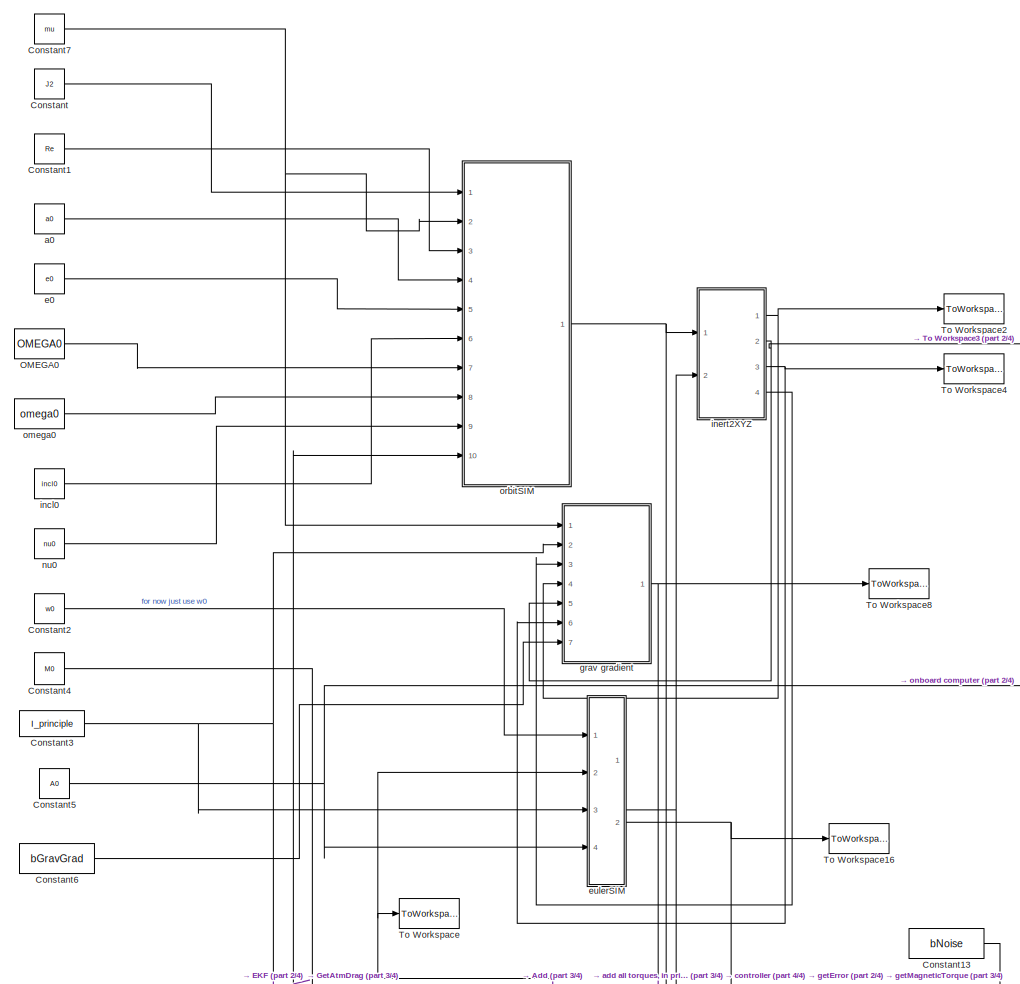
[diagram: root canvas - part 1/4, top center region]
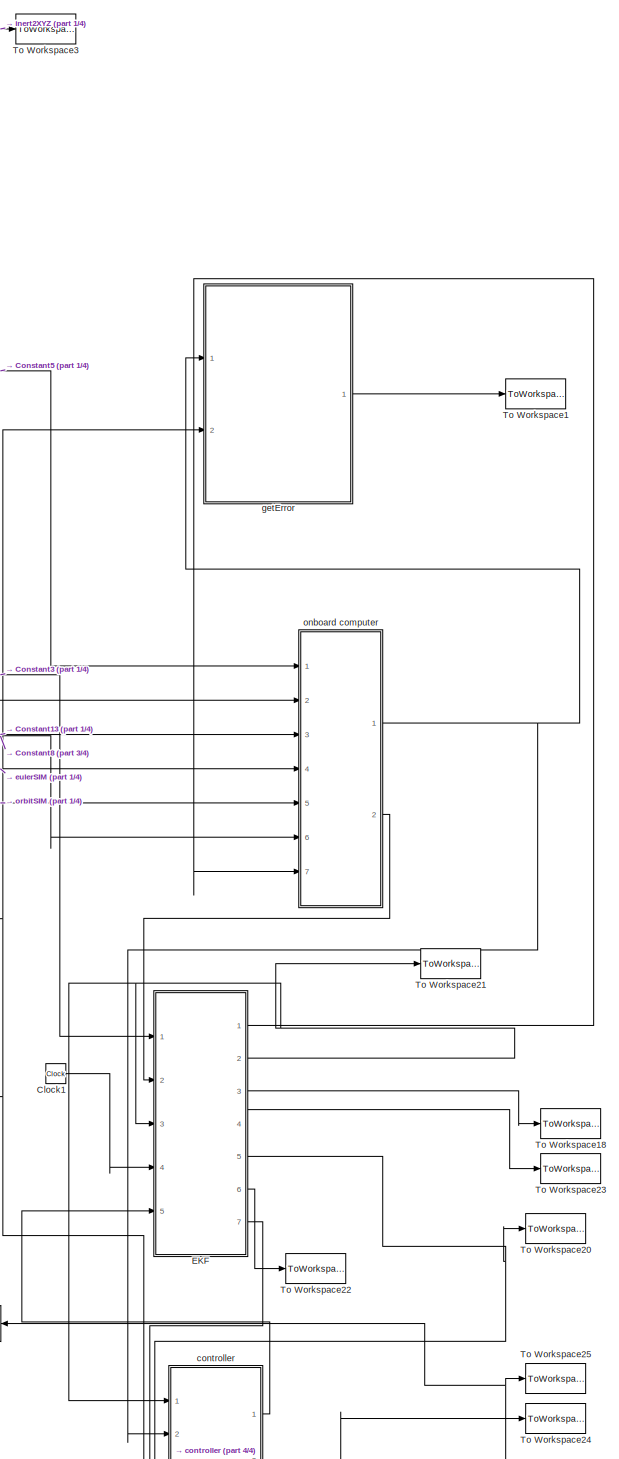
[diagram: root canvas - part 2/4, right side, full height]
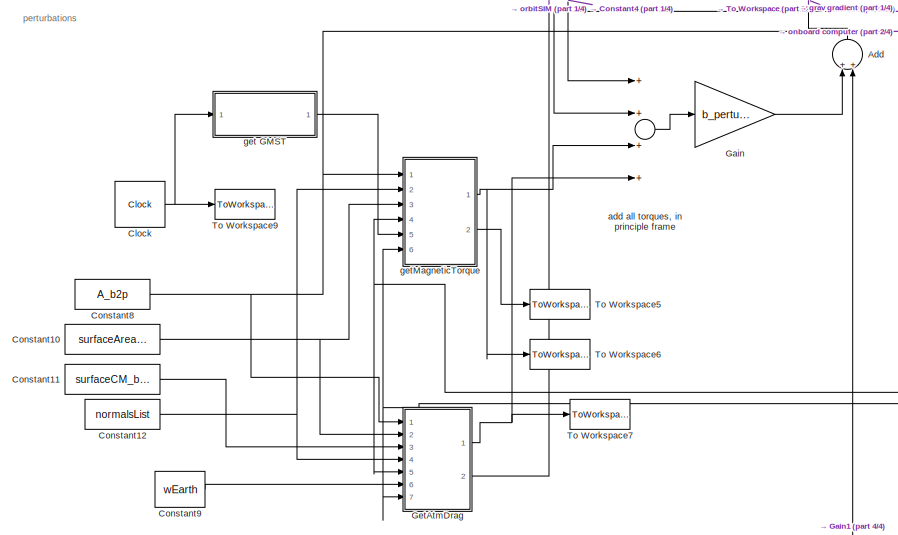
[diagram: root canvas - part 3/4, middle left region]
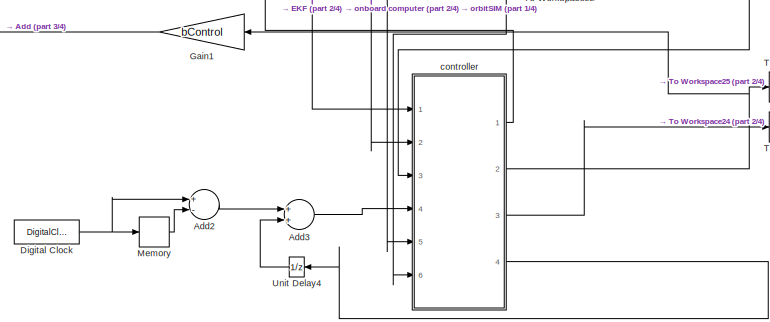
[diagram: root canvas - part 4/4, bottom right region]
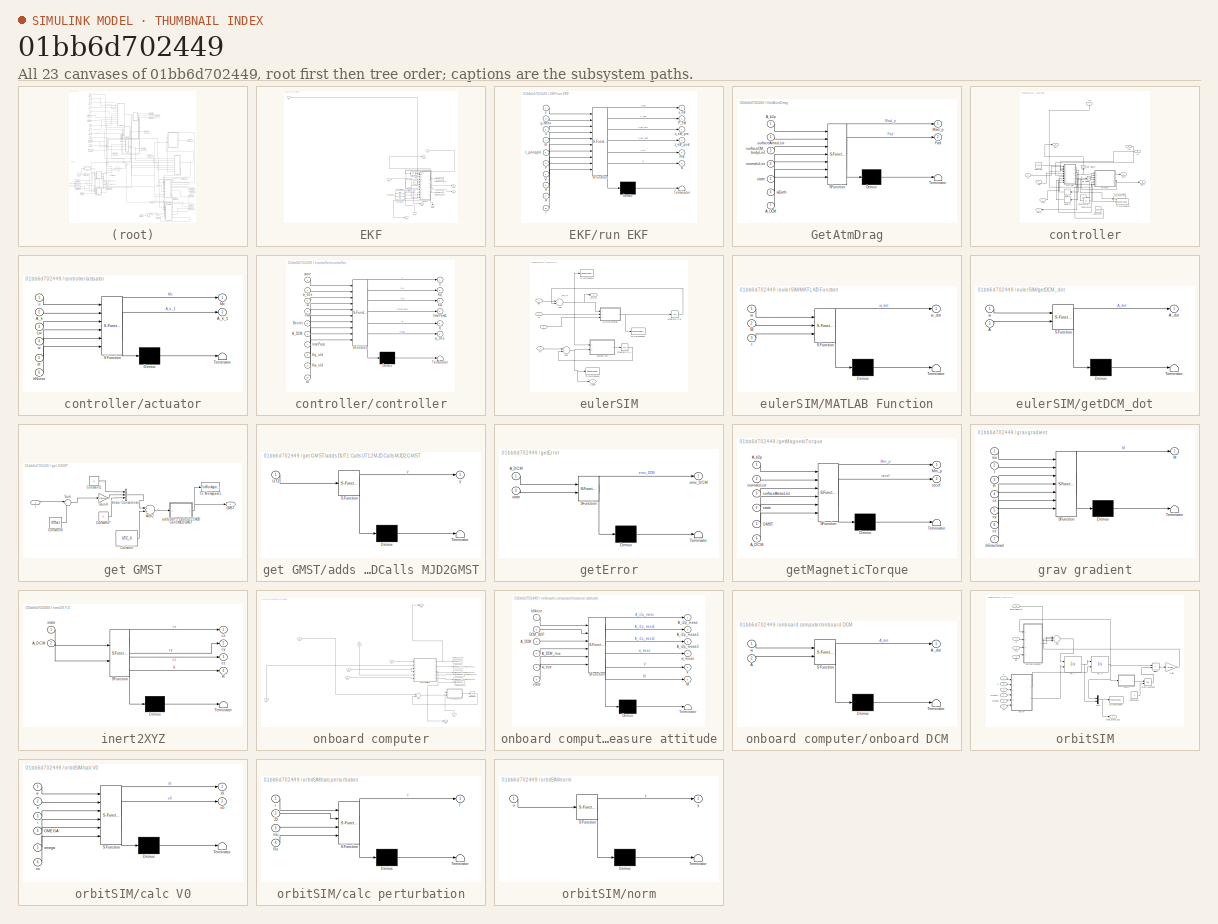
[diagram: thumbnail index - all 23 canvases of the model, root first then tree order]
MODEL slx_01bb6d702449
KIND model
CONFIG AbsTol = auto
CONFIG FixedStep = dt
CONFIG MaxStep = 60
CONFIG MinStep = .05
CONFIG RelTol = 1e-3
CONFIG SampleTimeConstraint = Unconstrained
CONFIG Solver = ode8
CONFIG SolverMode = Auto
CONFIG SolverName = ode8
CONFIG StartTime = 0.0
CONFIG StopTime = t_total
BLOCK [Sum] Add
  InputSameDT = off
  OutDataTypeStr = Inherit: Inherit via internal rule
  Ports = [2, 1]
  SaturateOnIntegerOverflow = off
BLOCK [Sum] Add2
  InputSameDT = off
  Inputs = +-
  OutDataTypeStr = Inherit: Inherit via internal rule
  Ports = [2, 1]
  SaturateOnIntegerOverflow = off
BLOCK [Sum] Add3
  InputSameDT = off
  OutDataTypeStr = Inherit: Inherit via internal rule
  Ports = [2, 1]
  SaturateOnIntegerOverflow = off
BLOCK [Clock] Clock
BLOCK [Clock] Clock1
BLOCK [Constant] Constant
  Value = J2
BLOCK [Constant] Constant1
  Value = Re
BLOCK [Constant] Constant10
  Value = surfaceAreasList
BLOCK [Constant] Constant11
  Value = surfaceCM_bodyList
BLOCK [Constant] Constant12
  Value = normalsList
BLOCK [Constant] Constant13
  Value = bNoise
BLOCK [Constant] Constant2
  Value = w0
BLOCK [Constant] Constant3
  Value = I_principle
BLOCK [Constant] Constant4
  Value = M0
BLOCK [Constant] Constant5
  Value = A0
BLOCK [Constant] Constant6
  Value = bGravGrad
BLOCK [Constant] Constant7
  Value = mu
BLOCK [Constant] Constant8
  Value = A_b2p
BLOCK [Constant] Constant9
  Value = wEarth
BLOCK [DigitalClock] Digital Clock
  SampleTime = dt
BLOCK [SubSystem] EKF
  Ports = [5, 7]
  RequestExecContextInheritance = off
BLOCK [Constant] EKF/Constant14
  Value = dt
BLOCK [Constant] EKF/Constant15
  Value = Q0
BLOCK [Constant] EKF/Constant16
  Value = R0
BLOCK [Constant] EKF/Constant17
  Value = H0
BLOCK [Inport] EKF/In1
  IconDisplay = Port number
BLOCK [Inport] EKF/In2
  IconDisplay = Port number
  Port = 2
BLOCK [Inport] EKF/In3
  IconDisplay = Port number
  Port = 3
BLOCK [Inport] EKF/In4
  IconDisplay = Port number
  Port = 4
BLOCK [Inport] EKF/In5
  IconDisplay = Port number
  Port = 5
BLOCK [Outport] EKF/Out1
  IconDisplay = Port number
BLOCK [Outport] EKF/Out2
  IconDisplay = Port number
  Port = 2
BLOCK [Outport] EKF/Out3
  IconDisplay = Port number
  Port = 3
BLOCK [Outport] EKF/Out4
  IconDisplay = Port number
  Port = 4
BLOCK [Outport] EKF/Out5
  IconDisplay = Port number
  Port = 5
BLOCK [Outport] EKF/Out6
  IconDisplay = Port number
  Port = 6
BLOCK [Outport] EKF/Out7
  IconDisplay = Port number
  Port = 7
BLOCK [ToWorkspace] EKF/To Workspace13
  FixptAsFi = on
  MaxDataPoints = inf
  Ports = [1]
  SampleTime = -1
  Save2DSignal = 3-D array (concatenate along third dimension)
  VariableName = x_ekf
BLOCK [ToWorkspace] EKF/To Workspace17
  FixptAsFi = on
  MaxDataPoints = inf
  Ports = [1]
  SampleTime = -1
  Save2DSignal = 3-D array (concatenate along third dimension)
  VariableName = P_ekf
BLOCK [UnitDelay] EKF/Unit Delay
  InitialCondition = x0
  InputProcessing = Elements as channels (sample based)
  SampleTime = -1
BLOCK [UnitDelay] EKF/Unit Delay1
  InitialCondition = P0
  InputProcessing = Elements as channels (sample based)
  SampleTime = -1
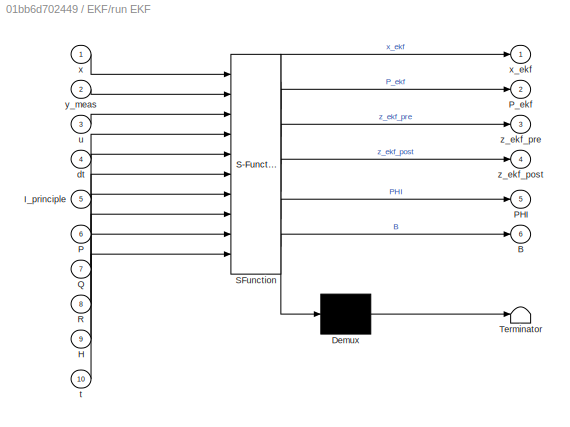
BLOCK [SubSystem] EKF/run EKF
  ErrorFcn = Stateflow.Translate.translate
  PermitHierarchicalResolution = ExplicitOnly
  Ports = [10, 6]
  RequestExecContextInheritance = off
  SFBlockType = MATLAB Function
  TreatAsAtomicUnit = on
BLOCK [Demux] EKF/run EKF/ Demux 
  Outputs = 1
  Ports = [1, 1]
BLOCK [S-Function] EKF/run EKF/ SFunction 
  EnableBusSupport = on
  FunctionName = sf_sfun
  PortCounts = [10 7]
  Ports = [10, 7]
  Tag = Stateflow S-Function sixDOF_hw8 14
BLOCK [Terminator] EKF/run EKF/ Terminator 
BLOCK [Outport] EKF/run EKF/B
  IconDisplay = Port number
  Port = 6
BLOCK [Inport] EKF/run EKF/H
  IconDisplay = Port number
  Port = 9
BLOCK [Inport] EKF/run EKF/I_principle
  IconDisplay = Port number
  Port = 5
BLOCK [Inport] EKF/run EKF/P
  IconDisplay = Port number
  Port = 6
BLOCK [Outport] EKF/run EKF/PHI
  IconDisplay = Port number
  Port = 5
BLOCK [Outport] EKF/run EKF/P_ekf
  IconDisplay = Port number
  Port = 2
BLOCK [Inport] EKF/run EKF/Q
  IconDisplay = Port number
  Port = 7
BLOCK [Inport] EKF/run EKF/R
  IconDisplay = Port number
  Port = 8
BLOCK [Inport] EKF/run EKF/dt
  IconDisplay = Port number
  Port = 4
BLOCK [Inport] EKF/run EKF/t
  IconDisplay = Port number
  Port = 10
BLOCK [Inport] EKF/run EKF/u
  IconDisplay = Port number
  Port = 3
BLOCK [Inport] EKF/run EKF/x
  IconDisplay = Port number
BLOCK [Outport] EKF/run EKF/x_ekf
  IconDisplay = Port number
BLOCK [Inport] EKF/run EKF/y_meas
  IconDisplay = Port number
  Port = 2
BLOCK [Outport] EKF/run EKF/z_ekf_post
  IconDisplay = Port number
  Port = 4
BLOCK [Outport] EKF/run EKF/z_ekf_pre
  IconDisplay = Port number
  Port = 3
BLOCK [Gain] Gain
  Gain = b_perturbs
  OutDataTypeStr = Inherit: Inherit via internal rule
  ParamDataTypeStr = Inherit: Inherit via internal rule
  SaturateOnIntegerOverflow = off
BLOCK [Gain] Gain1
  Gain = bControl
  OutDataTypeStr = Inherit: Inherit via internal rule
  ParamDataTypeStr = Inherit: Inherit via internal rule
  SaturateOnIntegerOverflow = off
BLOCK [SubSystem] GetAtmDrag
  ErrorFcn = Stateflow.Translate.translate
  PermitHierarchicalResolution = ExplicitOnly
  Ports = [7, 2]
  RequestExecContextInheritance = off
  SFBlockType = MATLAB Function
  TreatAsAtomicUnit = on
BLOCK [Demux] GetAtmDrag/ Demux 
  Outputs = 1
  Ports = [1, 1]
BLOCK [S-Function] GetAtmDrag/ SFunction 
  EnableBusSupport = on
  FunctionName = sf_sfun
  PortCounts = [7 3]
  Ports = [7, 3]
  Tag = Stateflow S-Function sixDOF_hw8 5
BLOCK [Terminator] GetAtmDrag/ Terminator 
BLOCK [Inport] GetAtmDrag/A_DCM
  IconDisplay = Port number
  Port = 7
BLOCK [Inport] GetAtmDrag/A_b2p
  IconDisplay = Port number
BLOCK [Outport] GetAtmDrag/Fad
  IconDisplay = Port number
  Port = 2
BLOCK [Outport] GetAtmDrag/Mad_p
  IconDisplay = Port number
BLOCK [Inport] GetAtmDrag/normalsList
  IconDisplay = Port number
  Port = 4
BLOCK [Inport] GetAtmDrag/state
  IconDisplay = Port number
  Port = 5
BLOCK [Inport] GetAtmDrag/surfaceAreasList
  IconDisplay = Port number
  Port = 2
BLOCK [Inport] GetAtmDrag/surfaceCM_bodyList
  IconDisplay = Port number
  Port = 3
BLOCK [Inport] GetAtmDrag/wEarth
  IconDisplay = Port number
  Port = 6
BLOCK [Memory] Memory
BLOCK [Constant] OMEGA0
  Value = OMEGA0
BLOCK [ToWorkspace] To Workspace
  FixptAsFi = on
  MaxDataPoints = inf
  Ports = [1]
  SampleTime = -1
  Save2DSignal = 3-D array (concatenate along third dimension)
  VariableName = Moments
BLOCK [ToWorkspace] To Workspace1
  FixptAsFi = on
  MaxDataPoints = inf
  Ports = [1]
  SampleTime = -1
  Save2DSignal = 3-D array (concatenate along third dimension)
  VariableName = error_DCM
BLOCK [ToWorkspace] To Workspace16
  FixptAsFi = on
  MaxDataPoints = inf
  Ports = [1]
  SampleTime = -1
  Save2DSignal = 3-D array (concatenate along third dimension)
  VariableName = w_true
BLOCK [ToWorkspace] To Workspace18
  FixptAsFi = on
  MaxDataPoints = inf
  Ports = [1]
  SampleTime = -1
  Save2DSignal = 3-D array (concatenate along third dimension)
  VariableName = z_ekf_pre
BLOCK [ToWorkspace] To Workspace2
  FixptAsFi = on
  MaxDataPoints = inf
  Ports = [1]
  SampleTime = -1
  Save2DSignal = 3-D array (concatenate along third dimension)
  VariableName = cx
BLOCK [ToWorkspace] To Workspace20
  FixptAsFi = on
  MaxDataPoints = inf
  Ports = [1]
  SampleTime = -1
  Save2DSignal = 3-D array (concatenate along third dimension)
  VariableName = PHI
BLOCK [ToWorkspace] To Workspace21
  FixptAsFi = on
  MaxDataPoints = inf
  Ports = [1]
  SampleTime = -1
  Save2DSignal = 3-D array (concatenate along third dimension)
  VariableName = x_ekf1
BLOCK [ToWorkspace] To Workspace22
  FixptAsFi = on
  MaxDataPoints = inf
  Ports = [1]
  SampleTime = -1
  Save2DSignal = 3-D array (concatenate along third dimension)
  VariableName = P_ekf2
BLOCK [ToWorkspace] To Workspace23
  FixptAsFi = on
  MaxDataPoints = inf
  Ports = [1]
  SampleTime = -1
  Save2DSignal = 3-D array (concatenate along third dimension)
  VariableName = z_ekf_post
BLOCK [ToWorkspace] To Workspace24
  FixptAsFi = on
  MaxDataPoints = inf
  Ports = [1]
  SampleTime = -1
  Save2DSignal = 3-D array (concatenate along third dimension)
  VariableName = A_CMG
BLOCK [ToWorkspace] To Workspace25
  FixptAsFi = on
  MaxDataPoints = inf
  Ports = [1]
  SampleTime = -1
  Save2DSignal = 3-D array (concatenate along third dimension)
  VariableName = Mcontrol
BLOCK [ToWorkspace] To Workspace3
  FixptAsFi = on
  MaxDataPoints = inf
  Ports = [1]
  SampleTime = -1
  Save2DSignal = 3-D array (concatenate along third dimension)
  VariableName = cy
BLOCK [ToWorkspace] To Workspace4
  FixptAsFi = on
  MaxDataPoints = inf
  Ports = [1]
  SampleTime = -1
  Save2DSignal = 3-D array (concatenate along third dimension)
  VariableName = cz
BLOCK [ToWorkspace] To Workspace5
  FixptAsFi = on
  MaxDataPoints = inf
  Ports = [1]
  SampleTime = -1
  Save2DSignal = 3-D array (concatenate along third dimension)
  VariableName = recef
BLOCK [ToWorkspace] To Workspace6
  FixptAsFi = on
  MaxDataPoints = inf
  Ports = [1]
  SampleTime = -1
  Save2DSignal = 3-D array (concatenate along third dimension)
  VariableName = Mm_p
BLOCK [ToWorkspace] To Workspace7
  FixptAsFi = on
  MaxDataPoints = inf
  Ports = [1]
  SampleTime = -1
  Save2DSignal = 3-D array (concatenate along third dimension)
  VariableName = Mad_p
BLOCK [ToWorkspace] To Workspace8
  FixptAsFi = on
  MaxDataPoints = inf
  Ports = [1]
  SampleTime = -1
  Save2DSignal = 3-D array (concatenate along third dimension)
  VariableName = Mgg_p
BLOCK [ToWorkspace] To Workspace9
  FixptAsFi = on
  MaxDataPoints = inf
  Ports = [1]
  SampleTime = -1
  Save2DSignal = 3-D array (concatenate along third dimension)
  VariableName = tout
BLOCK [UnitDelay] Unit Delay4
  InitialCondition = -50
  InputProcessing = Elements as channels (sample based)
  SampleTime = -1
BLOCK [Constant] a0
  Value = a0
BLOCK [Sum] add all torques, in principle frame
  InputSameDT = off
  Inputs = ++++
  OutDataTypeStr = Inherit: Inherit via internal rule
  Ports = [4, 1]
  SaturateOnIntegerOverflow = off
BLOCK [SubSystem] controller
  Ports = [6, 4]
  RequestExecContextInheritance = off
BLOCK [Constant] controller/Constant
  Value = w_des
BLOCK [Constant] controller/Constant1
  Value = bNoise
BLOCK [Constant] controller/Constant18
  Value = Lw
BLOCK [Constant] controller/Constant19
  Value = dt
BLOCK [Inport] controller/In1
  IconDisplay = Port number
  Port = 5
BLOCK [Inport] controller/In2
  IconDisplay = Port number
BLOCK [Inport] controller/In3
  IconDisplay = Port number
  Port = 2
BLOCK [Inport] controller/In4
  IconDisplay = Port number
  Port = 3
BLOCK [Inport] controller/In5
  IconDisplay = Port number
  Port = 4
BLOCK [Inport] controller/In6
  IconDisplay = Port number
  Port = 6
BLOCK [Memory] controller/Memory1
  X0 = zeros(4)
BLOCK [Memory] controller/Memory2
  X0 = zeros(3)
BLOCK [Outport] controller/Out1
  IconDisplay = Port number
BLOCK [Outport] controller/Out2
  IconDisplay = Port number
  Port = 2
BLOCK [Outport] controller/Out3
  IconDisplay = Port number
  Port = 3
BLOCK [Outport] controller/Out4
  IconDisplay = Port number
  Port = 4
BLOCK [ToWorkspace] controller/To Workspace
  FixptAsFi = on
  MaxDataPoints = inf
  Ports = [1]
  SampleTime = -1
  Save2DSignal = 3-D array (concatenate along third dimension)
  VariableName = quat
BLOCK [ToWorkspace] controller/To Workspace1
  FixptAsFi = on
  MaxDataPoints = inf
  Ports = [1]
  SampleTime = -1
  Save2DSignal = 3-D array (concatenate along third dimension)
  VariableName = quat_des
BLOCK [UnitDelay] controller/Unit Delay2
  InitialCondition = A_CMG0
  InputProcessing = Elements as channels (sample based)
  SampleTime = -1
BLOCK [UnitDelay] controller/Unit Delay3
  InitialCondition = u0
  InputProcessing = Elements as channels (sample based)
  SampleTime = -1
BLOCK [SubSystem] controller/actuator
  ErrorFcn = Stateflow.Translate.translate
  PermitHierarchicalResolution = ExplicitOnly
  Ports = [6, 2]
  RequestExecContextInheritance = off
  SFBlockType = MATLAB Function
  TreatAsAtomicUnit = on
BLOCK [Demux] controller/actuator/ Demux 
  Outputs = 1
  Ports = [1, 1]
BLOCK [S-Function] controller/actuator/ SFunction 
  EnableBusSupport = on
  FunctionName = sf_sfun
  PortCounts = [6 3]
  Ports = [6, 3]
  Tag = Stateflow S-Function sixDOF_hw8 16
BLOCK [Terminator] controller/actuator/ Terminator 
BLOCK [Inport] controller/actuator/A_k
  IconDisplay = Port number
  Port = 2
BLOCK [Outport] controller/actuator/A_k_1
  IconDisplay = Port number
  Port = 2
BLOCK [Inport] controller/actuator/Lw
  IconDisplay = Port number
  Port = 3
BLOCK [Outport] controller/actuator/Mc
  IconDisplay = Port number
BLOCK [Inport] controller/actuator/bNoise
  IconDisplay = Port number
  Port = 6
BLOCK [Inport] controller/actuator/dt
  IconDisplay = Port number
  Port = 5
BLOCK [Inport] controller/actuator/u
  IconDisplay = Port number
BLOCK [Inport] controller/actuator/w
  IconDisplay = Port number
  Port = 4
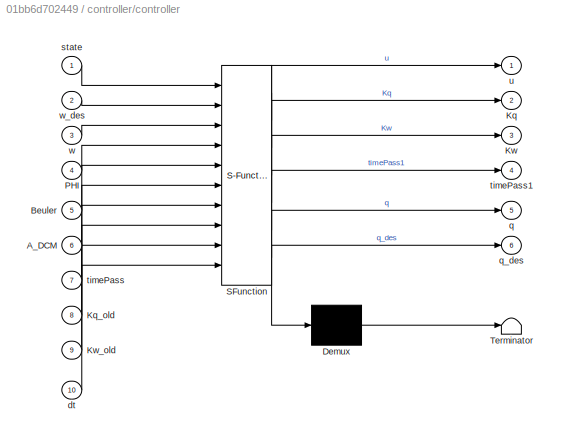
BLOCK [SubSystem] controller/controller
  ErrorFcn = Stateflow.Translate.translate
  PermitHierarchicalResolution = ExplicitOnly
  Ports = [10, 6]
  RequestExecContextInheritance = off
  SFBlockType = MATLAB Function
  TreatAsAtomicUnit = on
BLOCK [Demux] controller/controller/ Demux 
  Outputs = 1
  Ports = [1, 1]
BLOCK [S-Function] controller/controller/ SFunction 
  EnableBusSupport = on
  FunctionName = sf_sfun
  PortCounts = [10 7]
  Ports = [10, 7]
  Tag = Stateflow S-Function sixDOF_hw8 15
BLOCK [Terminator] controller/controller/ Terminator 
BLOCK [Inport] controller/controller/A_DCM
  IconDisplay = Port number
  Port = 6
BLOCK [Inport] controller/controller/Beuler
  IconDisplay = Port number
  Port = 5
BLOCK [Outport] controller/controller/Kq
  IconDisplay = Port number
  Port = 2
BLOCK [Inport] controller/controller/Kq_old
  IconDisplay = Port number
  Port = 8
BLOCK [Outport] controller/controller/Kw
  IconDisplay = Port number
  Port = 3
BLOCK [Inport] controller/controller/Kw_old
  IconDisplay = Port number
  Port = 9
BLOCK [Inport] controller/controller/PHI
  IconDisplay = Port number
  Port = 4
BLOCK [Inport] controller/controller/dt
  IconDisplay = Port number
  Port = 10
BLOCK [Outport] controller/controller/q
  IconDisplay = Port number
  Port = 5
BLOCK [Outport] controller/controller/q_des
  IconDisplay = Port number
  Port = 6
BLOCK [Inport] controller/controller/state
  IconDisplay = Port number
BLOCK [Inport] controller/controller/timePass
  IconDisplay = Port number
  Port = 7
BLOCK [Outport] controller/controller/timePass1
  IconDisplay = Port number
  Port = 4
BLOCK [Outport] controller/controller/u
  IconDisplay = Port number
BLOCK [Inport] controller/controller/w
  IconDisplay = Port number
  Port = 3
BLOCK [Inport] controller/controller/w_des
  IconDisplay = Port number
  Port = 2
BLOCK [Constant] e0
  Value = e0
BLOCK [SubSystem] eulerSIM
  Ports = [4, 2]
  RequestExecContextInheritance = off
BLOCK [Inport] eulerSIM/A0
  IconDisplay = Port number
  Port = 4
BLOCK [Outport] eulerSIM/A_DCM
  IconDisplay = Port number
BLOCK [Sum] eulerSIM/Add
  InputSameDT = off
  OutDataTypeStr = Inherit: Inherit via internal rule
  Ports = [2, 1]
  SaturateOnIntegerOverflow = off
BLOCK [Sum] eulerSIM/Add1
  InputSameDT = off
  OutDataTypeStr = Inherit: Inherit via internal rule
  Ports = [2, 1]
  SaturateOnIntegerOverflow = off
BLOCK [Inport] eulerSIM/I
  IconDisplay = Port number
  Port = 3
BLOCK [Inport] eulerSIM/M
  IconDisplay = Port number
  Port = 2
BLOCK [SubSystem] eulerSIM/MATLAB Function
  ErrorFcn = Stateflow.Translate.translate
  PermitHierarchicalResolution = ExplicitOnly
  Ports = [3, 1]
  RequestExecContextInheritance = off
  SFBlockType = MATLAB Function
  TreatAsAtomicUnit = on
BLOCK [Demux] eulerSIM/MATLAB Function/ Demux 
  Outputs = 1
  Ports = [1, 1]
BLOCK [S-Function] eulerSIM/MATLAB Function/ SFunction 
  EnableBusSupport = on
  FunctionName = sf_sfun
  PortCounts = [3 2]
  Ports = [3, 2]
  Tag = Stateflow S-Function sixDOF_hw8 7
BLOCK [Terminator] eulerSIM/MATLAB Function/ Terminator 
BLOCK [Inport] eulerSIM/MATLAB Function/I
  IconDisplay = Port number
  Port = 3
BLOCK [Inport] eulerSIM/MATLAB Function/M
  IconDisplay = Port number
  Port = 2
BLOCK [Inport] eulerSIM/MATLAB Function/w
  IconDisplay = Port number
BLOCK [Outport] eulerSIM/MATLAB Function/w_dot
  IconDisplay = Port number
BLOCK [ToWorkspace] eulerSIM/To Workspace
  FixptAsFi = on
  MaxDataPoints = inf
  Ports = [1]
  SampleTime = -1
  Save2DSignal = 3-D array (concatenate along third dimension)
  VariableName = ang_vel
BLOCK [ToWorkspace] eulerSIM/To Workspace2
  FixptAsFi = on
  MaxDataPoints = inf
  Ports = [1]
  SampleTime = -1
  Save2DSignal = 3-D array (concatenate along third dimension)
  VariableName = ang_accel
BLOCK [ToWorkspace] eulerSIM/To Workspace3
  FixptAsFi = on
  MaxDataPoints = inf
  Ports = [1]
  SampleTime = -1
  Save2DSignal = 3-D array (concatenate along third dimension)
  VariableName = A_DCM
BLOCK [SubSystem] eulerSIM/getDCM_dot
  ErrorFcn = Stateflow.Translate.translate
  PermitHierarchicalResolution = ExplicitOnly
  Ports = [2, 1]
  RequestExecContextInheritance = off
  SFBlockType = MATLAB Function
  TreatAsAtomicUnit = on
BLOCK [Demux] eulerSIM/getDCM_dot/ Demux 
  Outputs = 1
  Ports = [1, 1]
BLOCK [S-Function] eulerSIM/getDCM_dot/ SFunction 
  EnableBusSupport = on
  FunctionName = sf_sfun
  PortCounts = [2 2]
  Ports = [2, 2]
  Tag = Stateflow S-Function sixDOF_hw8 8
BLOCK [Terminator] eulerSIM/getDCM_dot/ Terminator 
BLOCK [Inport] eulerSIM/getDCM_dot/A
  IconDisplay = Port number
  Port = 2
BLOCK [Outport] eulerSIM/getDCM_dot/A_dot
  IconDisplay = Port number
BLOCK [Inport] eulerSIM/getDCM_dot/w
  IconDisplay = Port number
BLOCK [Integrator] eulerSIM/integrate to A
  Ports = [1, 1]
BLOCK [Integrator] eulerSIM/integrate to w
  Ports = [1, 1]
BLOCK [Inport] eulerSIM/w0
  IconDisplay = Port number
BLOCK [Outport] eulerSIM/w_true
  IconDisplay = Port number
  Port = 2
BLOCK [SubSystem] get GMST
  Ports = [1, 1]
  RequestExecContextInheritance = off
BLOCK [Sum] get GMST/Add2
  InputSameDT = off
  OutDataTypeStr = Inherit: Inherit via internal rule
  Ports = [2, 1]
  SaturateOnIntegerOverflow = off
BLOCK [Constant] get GMST/Constant
  Value = UTC_0
BLOCK [Constant] get GMST/Constant1
  Value = 0
BLOCK [Constant] get GMST/Constant7
  Value = 0
BLOCK [Constant] get GMST/Constant8
  Value = tOffset
BLOCK [Outport] get GMST/GMST
  IconDisplay = Port number
BLOCK [Gain] get GMST/Gain4
  Gain = 1/86164
  OutDataTypeStr = Inherit: Inherit via internal rule
  ParamDataTypeStr = Inherit: Inherit via internal rule
  SaturateOnIntegerOverflow = off
BLOCK [Sum] get GMST/Sum
  IconShape = round
  InputSameDT = off
  Inputs = |++
  OutDataTypeStr = Inherit: Inherit via internal rule
  Ports = [2, 1]
  SaturateOnIntegerOverflow = off
BLOCK [ToWorkspace] get GMST/To Workspace1
  FixptAsFi = on
  MaxDataPoints = inf
  Ports = [1]
  SampleTime = -1
  Save2DSignal = 3-D array (concatenate along third dimension)
  VariableName = GMST
BLOCK [Concatenate] get GMST/Vector Concatenate
  NumInputs = 3
  Ports = [3, 1]
BLOCK [SubSystem] get GMST/adds DUT1 Calls UT12MJD Calls MJD2GMST
  ErrorFcn = Stateflow.Translate.translate
  PermitHierarchicalResolution = ExplicitOnly
  Ports = [1, 1]
  RequestExecContextInheritance = off
  SFBlockType = MATLAB Function
  TreatAsAtomicUnit = on
BLOCK [Demux] get GMST/adds DUT1 Calls UT12MJD Calls MJD2GMST/ Demux 
  Outputs = 1
  Ports = [1, 1]
BLOCK [S-Function] get GMST/adds DUT1 Calls UT12MJD Calls MJD2GMST/ SFunction 
  EnableBusSupport = on
  FunctionName = sf_sfun
  PortCounts = [1 2]
  Ports = [1, 2]
  Tag = Stateflow S-Function sixDOF_hw8 11
BLOCK [Terminator] get GMST/adds DUT1 Calls UT12MJD Calls MJD2GMST/ Terminator 
BLOCK [Inport] get GMST/adds DUT1 Calls UT12MJD Calls MJD2GMST/UT1
  IconDisplay = Port number
BLOCK [Outport] get GMST/adds DUT1 Calls UT12MJD Calls MJD2GMST/y
  IconDisplay = Port number
BLOCK [Inport] get GMST/t
  IconDisplay = Port number
BLOCK [SubSystem] getError
  ErrorFcn = Stateflow.Translate.translate
  PermitHierarchicalResolution = ExplicitOnly
  Ports = [2, 1]
  RequestExecContextInheritance = off
  SFBlockType = MATLAB Function
  TreatAsAtomicUnit = on
BLOCK [Demux] getError/ Demux 
  Outputs = 1
  Ports = [1, 1]
BLOCK [S-Function] getError/ SFunction 
  EnableBusSupport = on
  FunctionName = sf_sfun
  PortCounts = [2 2]
  Ports = [2, 2]
  Tag = Stateflow S-Function sixDOF_hw8 6
BLOCK [Terminator] getError/ Terminator 
BLOCK [Inport] getError/A_DCM
  IconDisplay = Port number
BLOCK [Outport] getError/error_DCM
  IconDisplay = Port number
BLOCK [Inport] getError/state
  IconDisplay = Port number
  Port = 2
BLOCK [SubSystem] getMagneticTorque
  ErrorFcn = Stateflow.Translate.translate
  PermitHierarchicalResolution = ExplicitOnly
  Ports = [6, 2]
  RequestExecContextInheritance = off
  SFBlockType = MATLAB Function
  TreatAsAtomicUnit = on
BLOCK [Demux] getMagneticTorque/ Demux 
  Outputs = 1
  Ports = [1, 1]
BLOCK [S-Function] getMagneticTorque/ SFunction 
  EnableBusSupport = on
  FunctionName = sf_sfun
  PortCounts = [6 3]
  Ports = [6, 3]
  Tag = Stateflow S-Function sixDOF_hw8 4
BLOCK [Terminator] getMagneticTorque/ Terminator 
BLOCK [Inport] getMagneticTorque/A_DCM
  IconDisplay = Port number
  Port = 6
BLOCK [Inport] getMagneticTorque/A_b2p
  IconDisplay = Port number
BLOCK [Inport] getMagneticTorque/GMST
  IconDisplay = Port number
  Port = 5
BLOCK [Outport] getMagneticTorque/Mm_p
  IconDisplay = Port number
BLOCK [Inport] getMagneticTorque/normalsList
  IconDisplay = Port number
  Port = 2
BLOCK [Outport] getMagneticTorque/recef
  IconDisplay = Port number
  Port = 2
BLOCK [Inport] getMagneticTorque/state
  IconDisplay = Port number
  Port = 4
BLOCK [Inport] getMagneticTorque/surfaceAreasList
  IconDisplay = Port number
  Port = 3
BLOCK [SubSystem] grav gradient
  ErrorFcn = Stateflow.Translate.translate
  PermitHierarchicalResolution = ExplicitOnly
  Ports = [7, 1]
  RequestExecContextInheritance = off
  SFBlockType = MATLAB Function
  TreatAsAtomicUnit = on
BLOCK [Demux] grav gradient/ Demux 
  Outputs = 1
  Ports = [1, 1]
BLOCK [S-Function] grav gradient/ SFunction 
  EnableBusSupport = on
  FunctionName = sf_sfun
  PortCounts = [7 2]
  Ports = [7, 2]
  Tag = Stateflow S-Function sixDOF_hw8 9
BLOCK [Terminator] grav gradient/ Terminator 
BLOCK [Inport] grav gradient/I
  IconDisplay = Port number
  Port = 2
BLOCK [Outport] grav gradient/M
  IconDisplay = Port number
BLOCK [Inport] grav gradient/R
  IconDisplay = Port number
  Port = 3
BLOCK [Inport] grav gradient/bGravGrad
  IconDisplay = Port number
  Port = 7
BLOCK [Inport] grav gradient/cx
  IconDisplay = Port number
  Port = 4
BLOCK [Inport] grav gradient/cy
  IconDisplay = Port number
  Port = 5
BLOCK [Inport] grav gradient/cz
  IconDisplay = Port number
  Port = 6
BLOCK [Inport] grav gradient/mu
  IconDisplay = Port number
BLOCK [Constant] incl0
  Value = incl0
BLOCK [SubSystem] inert2XYZ
  ErrorFcn = Stateflow.Translate.translate
  PermitHierarchicalResolution = ExplicitOnly
  Ports = [2, 4]
  RequestExecContextInheritance = off
  SFBlockType = MATLAB Function
  TreatAsAtomicUnit = on
BLOCK [Demux] inert2XYZ/ Demux 
  Outputs = 1
  Ports = [1, 1]
BLOCK [S-Function] inert2XYZ/ SFunction 
  EnableBusSupport = on
  FunctionName = sf_sfun
  PortCounts = [2 5]
  Ports = [2, 5]
  Tag = Stateflow S-Function sixDOF_hw8 10
BLOCK [Terminator] inert2XYZ/ Terminator 
BLOCK [Inport] inert2XYZ/A_DCM
  IconDisplay = Port number
  Port = 2
BLOCK [Outport] inert2XYZ/R
  IconDisplay = Port number
  Port = 4
BLOCK [Outport] inert2XYZ/cx
  IconDisplay = Port number
BLOCK [Outport] inert2XYZ/cy
  IconDisplay = Port number
  Port = 2
BLOCK [Outport] inert2XYZ/cz
  IconDisplay = Port number
  Port = 3
BLOCK [Inport] inert2XYZ/state
  IconDisplay = Port number
BLOCK [Constant] nu0
  Value = nu0
BLOCK [Constant] omega0
  Value = omega0
BLOCK [SubSystem] onboard computer
  Ports = [7, 2]
  RequestExecContextInheritance = off
BLOCK [Sum] onboard computer/Add1
  InputSameDT = off
  OutDataTypeStr = Inherit: Inherit via internal rule
  Ports = [2, 1]
  SaturateOnIntegerOverflow = off
BLOCK [Inport] onboard computer/In1
  IconDisplay = Port number
BLOCK [Inport] onboard computer/In2
  IconDisplay = Port number
  Port = 2
BLOCK [Inport] onboard computer/In3
  IconDisplay = Port number
  Port = 3
BLOCK [Inport] onboard computer/In4
  IconDisplay = Port number
  Port = 4
BLOCK [Inport] onboard computer/In5
  IconDisplay = Port number
  Port = 5
BLOCK [Inport] onboard computer/In6
  IconDisplay = Port number
  Port = 6
BLOCK [Inport] onboard computer/In7
  IconDisplay = Port number
  Port = 7
BLOCK [Outport] onboard computer/Out1
  IconDisplay = Port number
BLOCK [Outport] onboard computer/Out2
  IconDisplay = Port number
  Port = 2
BLOCK [ToWorkspace] onboard computer/To Workspace10
  FixptAsFi = on
  MaxDataPoints = inf
  Ports = [1]
  SampleTime = -1
  Save2DSignal = 3-D array (concatenate along third dimension)
  VariableName = A_i2p_meas
BLOCK [ToWorkspace] onboard computer/To Workspace11
  FixptAsFi = on
  MaxDataPoints = inf
  Ports = [1]
  SampleTime = -1
  Save2DSignal = 3-D array (concatenate along third dimension)
  VariableName = A_i2p_meas2
BLOCK [ToWorkspace] onboard computer/To Workspace12
  FixptAsFi = on
  MaxDataPoints = inf
  Ports = [1]
  SampleTime = -1
  Save2DSignal = 3-D array (concatenate along third dimension)
  VariableName = A_i2p_meas3
BLOCK [ToWorkspace] onboard computer/To Workspace14
  FixptAsFi = on
  MaxDataPoints = inf
  Ports = [1]
  SampleTime = -1
  Save2DSignal = 3-D array (concatenate along third dimension)
  VariableName = V
BLOCK [ToWorkspace] onboard computer/To Workspace15
  FixptAsFi = on
  MaxDataPoints = inf
  Ports = [1]
  SampleTime = -1
  Save2DSignal = 3-D array (concatenate along third dimension)
  VariableName = M
BLOCK [ToWorkspace] onboard computer/To Workspace19
  FixptAsFi = on
  MaxDataPoints = inf
  Ports = [1]
  SampleTime = -1
  Save2DSignal = 3-D array (concatenate along third dimension)
  VariableName = w_meas
BLOCK [Integrator] onboard computer/integrate to A
  Ports = [1, 1]
BLOCK [SubSystem] onboard computer/measure attitude
  ErrorFcn = Stateflow.Translate.translate
  PermitHierarchicalResolution = ExplicitOnly
  Ports = [6, 6]
  RequestExecContextInheritance = off
  SFBlockType = MATLAB Function
  TreatAsAtomicUnit = on
BLOCK [Demux] onboard computer/measure attitude/ Demux 
  Outputs = 1
  Ports = [1, 1]
BLOCK [S-Function] onboard computer/measure attitude/ SFunction 
  EnableBusSupport = on
  FunctionName = sf_sfun
  PortCounts = [6 7]
  Ports = [6, 7]
  Tag = Stateflow S-Function sixDOF_hw8 12
BLOCK [Terminator] onboard computer/measure attitude/ Terminator 
BLOCK [Inport] onboard computer/measure attitude/A_DCM
  IconDisplay = Port number
  Port = 3
BLOCK [Inport] onboard computer/measure attitude/A_DCM_true
  IconDisplay = Port number
  Port = 4
BLOCK [Outport] onboard computer/measure attitude/A_i2p_meas
  IconDisplay = Port number
BLOCK [Outport] onboard computer/measure attitude/A_i2p_meas2
  IconDisplay = Port number
  Port = 2
BLOCK [Outport] onboard computer/measure attitude/A_i2p_meas3
  IconDisplay = Port number
  Port = 3
BLOCK [Inport] onboard computer/measure attitude/DCM_B2P
  IconDisplay = Port number
  Port = 2
BLOCK [Outport] onboard computer/measure attitude/M
  IconDisplay = Port number
  Port = 6
BLOCK [Outport] onboard computer/measure attitude/V
  IconDisplay = Port number
  Port = 5
BLOCK [Inport] onboard computer/measure attitude/bNoise
  IconDisplay = Port number
BLOCK [Inport] onboard computer/measure attitude/state
  IconDisplay = Port number
  Port = 6
BLOCK [Outport] onboard computer/measure attitude/w_meas
  IconDisplay = Port number
  Port = 4
BLOCK [Inport] onboard computer/measure attitude/w_true
  IconDisplay = Port number
  Port = 5
BLOCK [SubSystem] onboard computer/onboard DCM
  ErrorFcn = Stateflow.Translate.translate
  PermitHierarchicalResolution = ExplicitOnly
  Ports = [2, 1]
  RequestExecContextInheritance = off
  SFBlockType = MATLAB Function
  TreatAsAtomicUnit = on
BLOCK [Demux] onboard computer/onboard DCM/ Demux 
  Outputs = 1
  Ports = [1, 1]
BLOCK [S-Function] onboard computer/onboard DCM/ SFunction 
  EnableBusSupport = on
  FunctionName = sf_sfun
  PortCounts = [2 2]
  Ports = [2, 2]
  Tag = Stateflow S-Function sixDOF_hw8 13
BLOCK [Terminator] onboard computer/onboard DCM/ Terminator 
BLOCK [Inport] onboard computer/onboard DCM/A
  IconDisplay = Port number
  Port = 2
BLOCK [Outport] onboard computer/onboard DCM/A_dot
  IconDisplay = Port number
BLOCK [Inport] onboard computer/onboard DCM/w
  IconDisplay = Port number
BLOCK [SubSystem] orbitSIM
  Ports = [10, 1]
  RequestExecContextInheritance = off
BLOCK [Sum] orbitSIM/Add
  InputSameDT = off
  Inputs = +++
  OutDataTypeStr = Inherit: Inherit via internal rule
  Ports = [3, 1]
  SaturateOnIntegerOverflow = off
BLOCK [Constant] orbitSIM/Constant2
  Value = 3
BLOCK [Product] orbitSIM/Divide
  InputSameDT = off
  Inputs = */
  OutDataTypeStr = Inherit: Inherit via internal rule
  Ports = [2, 1]
  RndMeth = Floor
  SaturateOnIntegerOverflow = off
BLOCK [Gain] orbitSIM/Gain
  Gain = -1*mu
  OutDataTypeStr = Inherit: Inherit via internal rule
  ParamDataTypeStr = Inherit: Inherit via internal rule
  SaturateOnIntegerOverflow = off
BLOCK [Math] orbitSIM/Math Function
  Operator = pow
  Ports = [2, 1]
BLOCK [Mux] orbitSIM/Mux
  DisplayOption = bar
  Inputs = 2
  Ports = [2, 1]
BLOCK [Inport] orbitSIM/OMEGA
  IconDisplay = Port number
  Port = 7
BLOCK [Inport] orbitSIM/Re
  IconDisplay = Port number
  Port = 3
BLOCK [ToWorkspace] orbitSIM/To Workspace
  FixptAsFi = on
  MaxDataPoints = inf
  Ports = [1]
  SampleTime = -1
  Save2DSignal = 3-D array (concatenate along third dimension)
  VariableName = Xout
BLOCK [Inport] orbitSIM/a
  IconDisplay = Port number
  Port = 4
BLOCK [SubSystem] orbitSIM/calc V0
  ErrorFcn = Stateflow.Translate.translate
  PermitHierarchicalResolution = ExplicitOnly
  Ports = [6, 2]
  RequestExecContextInheritance = off
  SFBlockType = MATLAB Function
  TreatAsAtomicUnit = on
BLOCK [Demux] orbitSIM/calc V0/ Demux 
  Outputs = 1
  Ports = [1, 1]
BLOCK [S-Function] orbitSIM/calc V0/ SFunction 
  EnableBusSupport = on
  FunctionName = sf_sfun
  PortCounts = [6 3]
  Ports = [6, 3]
  Tag = Stateflow S-Function sixDOF_hw8 3
BLOCK [Terminator] orbitSIM/calc V0/ Terminator 
BLOCK [Inport] orbitSIM/calc V0/OMEGA
  IconDisplay = Port number
  Port = 4
BLOCK [Inport] orbitSIM/calc V0/a
  IconDisplay = Port number
BLOCK [Inport] orbitSIM/calc V0/e
  IconDisplay = Port number
  Port = 2
BLOCK [Inport] orbitSIM/calc V0/i
  IconDisplay = Port number
  Port = 3
BLOCK [Inport] orbitSIM/calc V0/nu
  IconDisplay = Port number
  Port = 6
BLOCK [Inport] orbitSIM/calc V0/omega
  IconDisplay = Port number
  Port = 5
BLOCK [Outport] orbitSIM/calc V0/r0
  IconDisplay = Port number
BLOCK [Outport] orbitSIM/calc V0/v0
  IconDisplay = Port number
  Port = 2
BLOCK [SubSystem] orbitSIM/calc perturbation
  ErrorFcn = Stateflow.Translate.translate
  PermitHierarchicalResolution = ExplicitOnly
  Ports = [4, 1]
  RequestExecContextInheritance = off
  SFBlockType = MATLAB Function
  TreatAsAtomicUnit = on
BLOCK [Demux] orbitSIM/calc perturbation/ Demux 
  Outputs = 1
  Ports = [1, 1]
BLOCK [S-Function] orbitSIM/calc perturbation/ SFunction 
  EnableBusSupport = on
  FunctionName = sf_sfun
  PortCounts = [4 2]
  Ports = [4, 2]
  Tag = Stateflow S-Function sixDOF_hw8 2
BLOCK [Terminator] orbitSIM/calc perturbation/ Terminator 
BLOCK [Inport] orbitSIM/calc perturbation/J2
  IconDisplay = Port number
  Port = 2
BLOCK [Inport] orbitSIM/calc perturbation/Re
  IconDisplay = Port number
  Port = 4
BLOCK [Outport] orbitSIM/calc perturbation/f
  IconDisplay = Port number
BLOCK [Inport] orbitSIM/calc perturbation/mu
  IconDisplay = Port number
  Port = 3
BLOCK [Inport] orbitSIM/calc perturbation/r
  IconDisplay = Port number
BLOCK [Inport] orbitSIM/e
  IconDisplay = Port number
  Port = 5
BLOCK [Inport] orbitSIM/externalForce
  IconDisplay = Port number
  Port = 10
BLOCK [Inport] orbitSIM/i
  IconDisplay = Port number
  Port = 6
BLOCK [Integrator] orbitSIM/int A
  InitialConditionSource = external
  Ports = [2, 1]
BLOCK [Integrator] orbitSIM/int V
  InitialConditionSource = external
  Ports = [2, 1]
BLOCK [Inport] orbitSIM/j2
  IconDisplay = Port number
BLOCK [Inport] orbitSIM/mu
  IconDisplay = Port number
  Port = 2
BLOCK [SubSystem] orbitSIM/norm
  ErrorFcn = Stateflow.Translate.translate
  PermitHierarchicalResolution = ExplicitOnly
  Ports = [1, 1]
  RequestExecContextInheritance = off
  SFBlockType = MATLAB Function
  TreatAsAtomicUnit = on
BLOCK [Demux] orbitSIM/norm/ Demux 
  Outputs = 1
  Ports = [1, 1]
BLOCK [S-Function] orbitSIM/norm/ SFunction 
  EnableBusSupport = on
  FunctionName = sf_sfun
  PortCounts = [1 2]
  Ports = [1, 2]
  Tag = Stateflow S-Function sixDOF_hw8 1
BLOCK [Terminator] orbitSIM/norm/ Terminator 
BLOCK [Inport] orbitSIM/norm/u
  IconDisplay = Port number
BLOCK [Outport] orbitSIM/norm/y
  IconDisplay = Port number
BLOCK [Inport] orbitSIM/nu
  IconDisplay = Port number
  Port = 9
BLOCK [Inport] orbitSIM/omega
  IconDisplay = Port number
  Port = 8
BLOCK [Outport] orbitSIM/orbit_state_ECI
  IconDisplay = Port number
ANNOTATION (root): perturbations
ANNOTATION eulerSIM: ang_vel
LINE Add2:1 -> Add3:1
LINE Add3:1 -> controller:4
NET Add:1 -> To Workspace:1, eulerSIM:2
LINE Clock1:1 -> EKF:4
NET Clock:1 -> To Workspace9:1, get GMST:1
NET Constant10:1 -> GetAtmDrag:2, getMagneticTorque:3
LINE Constant11:1 -> GetAtmDrag:3
NET Constant12:1 -> GetAtmDrag:4, getMagneticTorque:2
LINE Constant13:1 -> onboard computer:3
LINE Constant1:1 -> orbitSIM:3
LINE Constant2:1 -> eulerSIM:1
NET Constant3:1 -> EKF:1, eulerSIM:3, grav gradient:2
LINE Constant4:1 -> add all torques, in principle frame:1
NET Constant5:1 -> eulerSIM:4, onboard computer:1
LINE Constant6:1 -> grav gradient:7
NET Constant7:1 -> grav gradient:1, orbitSIM:2
NET Constant8:1 -> GetAtmDrag:1, getMagneticTorque:1, onboard computer:6
LINE Constant9:1 -> GetAtmDrag:6
LINE Constant:1 -> orbitSIM:1
NET Digital Clock:1 -> Add2:1, Memory:1
LINE EKF/Constant14:1 -> EKF/run EKF:4
LINE EKF/Constant15:1 -> EKF/run EKF:7
LINE EKF/Constant16:1 -> EKF/run EKF:8
LINE EKF/Constant17:1 -> EKF/run EKF:9
LINE EKF/In1:1 -> EKF/run EKF:5
LINE EKF/In2:1 -> EKF/run EKF:2
LINE EKF/In3:1 -> EKF/run EKF:1
LINE EKF/In4:1 -> EKF/run EKF:10
LINE EKF/In5:1 -> EKF/run EKF:3
NET EKF/Unit Delay1:1 -> EKF/Out6:1, EKF/run EKF:6
LINE EKF/Unit Delay:1 -> EKF/Out2:1
NET EKF/run EKF:1 -> EKF/Out1:1, EKF/To Workspace13:1, EKF/Unit Delay:1
NET EKF/run EKF:2 -> EKF/To Workspace17:1, EKF/Unit Delay1:1
LINE EKF/run EKF:3 -> EKF/Out3:1
LINE EKF/run EKF:4 -> EKF/Out4:1
LINE EKF/run EKF:5 -> EKF/Out5:1
LINE EKF/run EKF:6 -> EKF/Out7:1
LINE EKF:1 -> onboard computer:7
NET EKF:2 -> EKF:3, To Workspace21:1, controller:1
LINE EKF:3 -> To Workspace18:1
LINE EKF:4 -> To Workspace23:1
NET EKF:5 -> To Workspace20:1, controller:3
LINE EKF:6 -> To Workspace22:1
LINE EKF:7 -> controller:6
LINE Gain1:1 -> Add:2
LINE Gain:1 -> Add:1
NET GetAtmDrag:1 -> To Workspace7:1, add all torques, in principle frame:4
LINE GetAtmDrag:2 -> orbitSIM:10
LINE Memory:1 -> Add2:2
LINE OMEGA0:1 -> orbitSIM:7
LINE Unit Delay4:1 -> Add3:2
LINE a0:1 -> orbitSIM:4
LINE add all torques, in principle frame:1 -> Gain:1
LINE controller/Constant18:1 -> controller/actuator:3
NET controller/Constant19:1 -> controller/actuator:5, controller/controller:10
LINE controller/Constant1:1 -> controller/actuator:6
LINE controller/Constant:1 -> controller/controller:2
LINE controller/In1:1 -> controller/controller:1
NET controller/In2:1 -> controller/actuator:4, controller/controller:3
LINE controller/In3:1 -> controller/controller:6
LINE controller/In4:1 -> controller/controller:4
LINE controller/In5:1 -> controller/controller:7
LINE controller/In6:1 -> controller/controller:5
LINE controller/Memory1:1 -> controller/controller:8
LINE controller/Memory2:1 -> controller/controller:9
LINE controller/Unit Delay2:1 -> controller/actuator:2
LINE controller/Unit Delay3:1 -> controller/Out1:1
LINE controller/actuator:1 -> controller/Out2:1
NET controller/actuator:2 -> controller/Out3:1, controller/Unit Delay2:1
NET controller/controller:1 -> controller/Unit Delay3:1, controller/actuator:1
LINE controller/controller:2 -> controller/Memory1:1
LINE controller/controller:3 -> controller/Memory2:1
LINE controller/controller:4 -> controller/Out4:1
LINE controller/controller:5 -> controller/To Workspace:1
LINE controller/controller:6 -> controller/To Workspace1:1
LINE controller:1 -> EKF:5
NET controller:2 -> Gain1:1, To Workspace25:1
LINE controller:3 -> To Workspace24:1
LINE controller:4 -> Unit Delay4:1
LINE e0:1 -> orbitSIM:5
LINE eulerSIM/A0:1 -> eulerSIM/Add1:1
NET eulerSIM/Add1:1 -> eulerSIM/A_DCM:1, eulerSIM/To Workspace3:1, eulerSIM/getDCM_dot:2
NET eulerSIM/Add:1 -> eulerSIM/MATLAB Function:1, eulerSIM/To Workspace:1, eulerSIM/getDCM_dot:1, eulerSIM/w_true:1
LINE eulerSIM/I:1 -> eulerSIM/MATLAB Function:3
LINE eulerSIM/M:1 -> eulerSIM/MATLAB Function:2
NET eulerSIM/MATLAB Function:1 -> eulerSIM/To Workspace2:1, eulerSIM/integrate to w:1
LINE eulerSIM/getDCM_dot:1 -> eulerSIM/integrate to A:1
LINE eulerSIM/integrate to A:1 -> eulerSIM/Add1:2
LINE eulerSIM/integrate to w:1 -> eulerSIM/Add:2
LINE eulerSIM/w0:1 -> eulerSIM/Add:1
NET eulerSIM:1 -> GetAtmDrag:7, getMagneticTorque:6, inert2XYZ:2, onboard computer:4
NET eulerSIM:2 -> To Workspace16:1, onboard computer:2
LINE get GMST/Add2:1 -> get GMST/adds DUT1 Calls UT12MJD Calls MJD2GMST:1
LINE get GMST/Constant1:1 -> get GMST/Vector Concatenate:1
LINE get GMST/Constant7:1 -> get GMST/Vector Concatenate:3
LINE get GMST/Constant8:1 -> get GMST/Sum:2
LINE get GMST/Constant:1 -> get GMST/Add2:2
LINE get GMST/Gain4:1 -> get GMST/Vector Concatenate:2
LINE get GMST/Sum:1 -> get GMST/Gain4:1
LINE get GMST/Vector Concatenate:1 -> get GMST/Add2:1
NET get GMST/adds DUT1 Calls UT12MJD Calls MJD2GMST:1 -> get GMST/GMST:1, get GMST/To Workspace1:1
LINE get GMST/t:1 -> get GMST/Sum:1
LINE get GMST:1 -> getMagneticTorque:5
LINE getError:1 -> To Workspace1:1
NET getMagneticTorque:1 -> To Workspace6:1, add all torques, in principle frame:3
LINE getMagneticTorque:2 -> To Workspace5:1
NET grav gradient:1 -> To Workspace8:1, add all torques, in principle frame:2
LINE incl0:1 -> orbitSIM:6
NET inert2XYZ:1 -> To Workspace2:1, grav gradient:4
NET inert2XYZ:2 -> To Workspace3:1, grav gradient:5
NET inert2XYZ:3 -> To Workspace4:1, grav gradient:6
LINE inert2XYZ:4 -> grav gradient:3
LINE nu0:1 -> orbitSIM:9
LINE omega0:1 -> orbitSIM:8
LINE onboard computer/Add1:1 -> onboard computer/onboard DCM:2
LINE onboard computer/In1:1 -> onboard computer/Add1:1
LINE onboard computer/In2:1 -> onboard computer/measure attitude:5
LINE onboard computer/In3:1 -> onboard computer/measure attitude:1
NET onboard computer/In4:1 -> onboard computer/measure attitude:3, onboard computer/measure attitude:4
LINE onboard computer/In5:1 -> onboard computer/measure attitude:6
LINE onboard computer/In6:1 -> onboard computer/measure attitude:2
LINE onboard computer/In7:1 -> onboard computer/onboard DCM:1
LINE onboard computer/integrate to A:1 -> onboard computer/Add1:2
NET onboard computer/measure attitude:1 -> onboard computer/Out1:1, onboard computer/To Workspace10:1
LINE onboard computer/measure attitude:2 -> onboard computer/To Workspace11:1
LINE onboard computer/measure attitude:3 -> onboard computer/To Workspace12:1
NET onboard computer/measure attitude:4 -> onboard computer/Out2:1, onboard computer/To Workspace19:1
LINE onboard computer/measure attitude:5 -> onboard computer/To Workspace14:1
LINE onboard computer/measure attitude:6 -> onboard computer/To Workspace15:1
LINE onboard computer/onboard DCM:1 -> onboard computer/integrate to A:1
NET onboard computer:1 -> controller:2, getError:1
LINE onboard computer:2 -> EKF:2
LINE orbitSIM/Add:1 -> orbitSIM/int A:1
LINE orbitSIM/Constant2:1 -> orbitSIM/Math Function:2
LINE orbitSIM/Divide:1 -> orbitSIM/Gain:1
LINE orbitSIM/Gain:1 -> orbitSIM/Add:2
LINE orbitSIM/Math Function:1 -> orbitSIM/Divide:2
NET orbitSIM/Mux:1 -> orbitSIM/To Workspace:1, orbitSIM/orbit_state_ECI:1
LINE orbitSIM/OMEGA:1 -> orbitSIM/calc V0:4
LINE orbitSIM/Re:1 -> orbitSIM/calc perturbation:4
LINE orbitSIM/a:1 -> orbitSIM/calc V0:1
LINE orbitSIM/calc V0:1 -> orbitSIM/int V:2
LINE orbitSIM/calc V0:2 -> orbitSIM/int A:2
LINE orbitSIM/calc perturbation:1 -> orbitSIM/Add:1
LINE orbitSIM/e:1 -> orbitSIM/calc V0:2
LINE orbitSIM/externalForce:1 -> orbitSIM/Add:3
LINE orbitSIM/i:1 -> orbitSIM/calc V0:3
NET orbitSIM/int A:1 -> orbitSIM/Mux:2, orbitSIM/int V:1
NET orbitSIM/int V:1 -> orbitSIM/Divide:1, orbitSIM/Mux:1, orbitSIM/calc perturbation:1, orbitSIM/norm:1
LINE orbitSIM/j2:1 -> orbitSIM/calc perturbation:2
LINE orbitSIM/mu:1 -> orbitSIM/calc perturbation:3
LINE orbitSIM/norm:1 -> orbitSIM/Math Function:1
LINE orbitSIM/nu:1 -> orbitSIM/calc V0:6
LINE orbitSIM/omega:1 -> orbitSIM/calc V0:5
NET orbitSIM:1 -> GetAtmDrag:5, controller:5, getError:2, getMagneticTorque:4, inert2XYZ:1, onboard computer:5
note: NET lines group one-source signal fan-out (src -> all destinations, sorted); 1:1 wires keep LINE
CHART orbitSIM/norm states=1 transitions=1
  STATE_LABEL 'eML_blk_kernel()'
  STATE_LABEL 'SCRIPT:\nfunction y = fcn(u)\n%#codegen\n\ny = norm(u);'
CHART orbitSIM/calc perturbation states=1 transitions=1
  STATE_LABEL 'eML_blk_kernel()'
  STATE_LABEL "SCRIPT:\nfunction f = fcn(r, J2, mu, Re)\n% NOTE! EVERYTHING IN DEGREES\n% \n% fR = -3*mu*J2*Re^2/(2*r^4)*(1-3*sind(incl)^2*sind(u)^2);\n% fT = -3*mu*J2*Re^2/(2*r^4)*(sind(incl)^2*sind(u)*cosd(u));\n% fN = -3*mu*J2*Re^2/(2*r^4)*(sind(incl)*cosd(incl)*sind(u));\nrMag = norm(r);\nrDir = r ./ norm(r);\nf = -mu*J2*Re^2/2*( [0, 0, 6*r(3)/rMag^5]' + ...\n      (3/rMag^4 - 15*(r(3)^2/rMag^6)).*rDir);\n\nend"
CHART orbitSIM/calc V0 states=1 transitions=1
  STATE_LABEL 'eML_blk_kernel()'
  STATE_LABEL 'SCRIPT:\nfunction [r0, v0] = fcn(a, e, i, OMEGA, omega, nu)\n%#codegen\n[r0, v0] = OE2XV(a, e, i, OMEGA, omega, nu);\nend'
CHART getMagneticTorque states=1 transitions=1
  STATE_LABEL 'eML_blk_kernel()'
  STATE_LABEL "SCRIPT:\nfunction [Mm_p, recef] = fcn(A_b2p, normalsList, surfaceAreasList, state, GMST, A_DCM)\n%#codegen\n\ncoder.extrinsic('magneticTorque'); \nxECI = state(1:3);\nr = norm(xECI);\n[ longitude, latitude, recef ] = getLongLatECEF( xECI, GMST );\nMm_p = [0 0 0]';\nif false\n  [ Mm_p ] = magneticTorque( A_b2p, surfaceAreasList, normalsList, ...\n  longitude, latitude, r, A_DCM, GMST);\nend\nend\n"
CHART GetAtmDrag states=1 transitions=1
  STATE_LABEL 'eML_blk_kernel()'
  STATE_LABEL "SCRIPT:\nfunction [Mad_p, Fad] = fcn(A_b2p, surfaceAreasList, surfaceCM_bodyList, ...\n  normalsList, state, wEarth, A_DCM)\n%#codegen\nxECI = state(1:3);\nV_sc = state(4:6);\n[ Fad, Mad ] = atmDragTorque(A_b2p, surfaceAreasList, surfaceCM_bodyList, ...\n    normalsList, xECI, A_DCM, wEarth, V_sc );\nA_p2i = getP2IfromA_DCM(A_DCM);\nMad_p = A_p2i' * Mad;\nend"
CHART getError states=1 transitions=1
  STATE_LABEL 'eML_blk_kernel()'
  STATE_LABEL 'SCRIPT:\nfunction error_DCM = fcn(A_DCM, state)\n%#codegen\n[ error_DCM ] = getAttError( A_DCM, state);'
CHART eulerSIM/MATLAB Function states=1 transitions=1
  STATE_LABEL 'eML_blk_kernel()'
  STATE_LABEL 'SCRIPT:\nfunction w_dot = eulerRHS(w, M, I)\n% principle axis euler eq\n% w is 3x1 rotational velocity, expressed in principle\n% M is 3x1 external torques, expressed in principle\nIx = I(1,1); Iy = I(2,2); Iz = I(3,3);\nw_dot = zeros(3,1);\nw_dot(1) = (M(1) - (Iz - Iy)*w(2)*w(3) ) / Ix;\nw_dot(2) = (M(2) - (Ix - Iz)*w(1)*w(3) ) / Iy;\nw_dot(3) = (M(3) - (Iy - Ix)*w(1)*w(2) ) / Iz;\nend'
CHART eulerSIM/getDCM_dot states=1 transitions=1
  STATE_LABEL 'eML_blk_kernel()'
  STATE_LABEL 'SCRIPT:\nfunction A_dot   = getDCM_dot( w, A )\n%GETDCM_DOT calculate time-derivative of DCM\n% w is ang vel of body axes w.r.t. inertial EXPRESSED IN INERTIAL\n[ A_dot ] = getDCM_dot( w, A );\n\nend\n\n'
CHART grav gradient states=1 transitions=1
  STATE_LABEL 'eML_blk_kernel()'
  STATE_LABEL "SCRIPT:\nfunction M = fcn(mu, I, R, cx, cy, cz, bGravGrad)\n%#codegen\nif bGravGrad\n  M = gravGradient( mu, I, R, cx, cy, cz );\nelse\n  M = [0 0 0]';\nend\n"
CHART inert2XYZ states=1 transitions=1
  STATE_LABEL 'eML_blk_kernel()'
  STATE_LABEL "SCRIPT:\nfunction [cx, cy, cz, R] = fcn(state, A_DCM)\n%#codegen\n%A should be principle to inertial\nA = getP2IfromA_DCM( A_DCM );\nR = norm(state(1:3));\nc = 1 / R * A' * state(1:3);\ncx = c(1);\ncy = c(2);\ncz = c(3);"
CHART get GMST/adds DUT1
Calls UT12MJD
Calls MJD2GMST states=1 transitions=1
  STATE_LABEL 'eML_blk_kernel()'
  STATE_LABEL 'SCRIPT:\nfunction y = fcn(UT1)\n%u is calendar form\n% DUT1= (UT1-UTC) transmitted with time signals                         \n%              =  +0.5 seconds beginning 26 Jan 2017 at 0000 UTC  \nUT1(2) = UT1(2) + 0.5; %defined offset\ny1 = UT12MJD(UT1);\ny = MJD2GMST(y1);\n\nend'
CHART onboard computer/measure attitude states=1 transitions=1
  STATE_LABEL 'eML_blk_kernel()'
  STATE_LABEL 'SCRIPT:\nfunction [ A_i2p_meas, A_i2p_meas2, A_i2p_meas3, w_meas, V,M ] = fcn( bNoise, DCM_B2P, A_DCM, A_DCM_true, w_true, state )\n%#codegen\n[ A_i2p_meas, A_i2p_meas2, A_i2p_meas3, V, M ] = measureAtt( bNoise, DCM_B2P, A_DCM, A_DCM_true, state );\nw_meas = measureOMEGA(w_true, DCM_B2P, bNoise);'
CHART onboard computer/onboard DCM states=1 transitions=1
  STATE_LABEL 'eML_blk_kernel()'
  STATE_LABEL 'SCRIPT:\nfunction A_dot   = getDCM_dot( w, A )\n%GETDCM_DOT calculate time-derivative of DCM\n% w is ang vel of body axes w.r.t. inertial EXPRESSED IN INERTIAL\n[ A_dot ] = getDCM_dot( w, A );\n\nend\n\n'
CHART EKF/run EKF states=1 transitions=1
  STATE_LABEL 'eML_blk_kernel()'
  STATE_LABEL 'SCRIPT:\nfunction [x_ekf, P_ekf, z_ekf_pre, z_ekf_post, PHI, B] = fcn(x, y_meas, u, dt, I_principle, ...\n  P, Q, R, H, t)\n%#codegen\n[ PHI, B ] = linearEuler( y_meas, dt, I_principle );\n[ x_k, P_ekf, z_ekf_pre, z_ekf_post ] = EKF( x, y_meas, u, PHI, B, ...\n            P, Q, R, H);\n          \nx_ekf = x_k;'
CHART controller/controller states=1 transitions=1
  STATE_LABEL 'eML_blk_kernel()'
  STATE_LABEL "SCRIPT:\nfunction [u, Kq, Kw, timePass1, q, q_des]  = fcn(state, w_des, w, PHI, Beuler, A_DCM, timePass, Kq_old, Kw_old, dt)\n%#codegen\n% x = [quat; ang vel]\n\ntriad1 = getRTNTriadfromState( state );\nA_RTN = getDCM(triad1, eye(3));\ncoder.extrinsic('DCM2Quat_3rdTry')\nq_des = coder.nullcopy(zeros(4,1));\nq = coder.nullcopy(zeros(4,1));\nq_des = DCM2Quat_3rdTry(A_RTN);\nq = DCM2Quat_3rdTry(A_DCM);\n\ncoder.e...<+656ch>"
CHART controller/actuator states=1 transitions=1
  STATE_LABEL 'eML_blk_kernel()'
  STATE_LABEL 'SCRIPT:\nfunction [Mc, A_k_1] = fcn(u, A_k, Lw, w, dt, bNoise)\n%#codegen\n% u = M_desired\nMc = zeros(3,1);\nMc(:) = u(:);\nif bNoise\n  Mc = Mc + 0.01*rand(3,1);\nend\nA_dot = 1/Lw*(-cross(w,A_k*Lw) - Mc);\n%perfect, instantaneous actuators!\nA_k_1 = A_k + dt*A_dot;'
